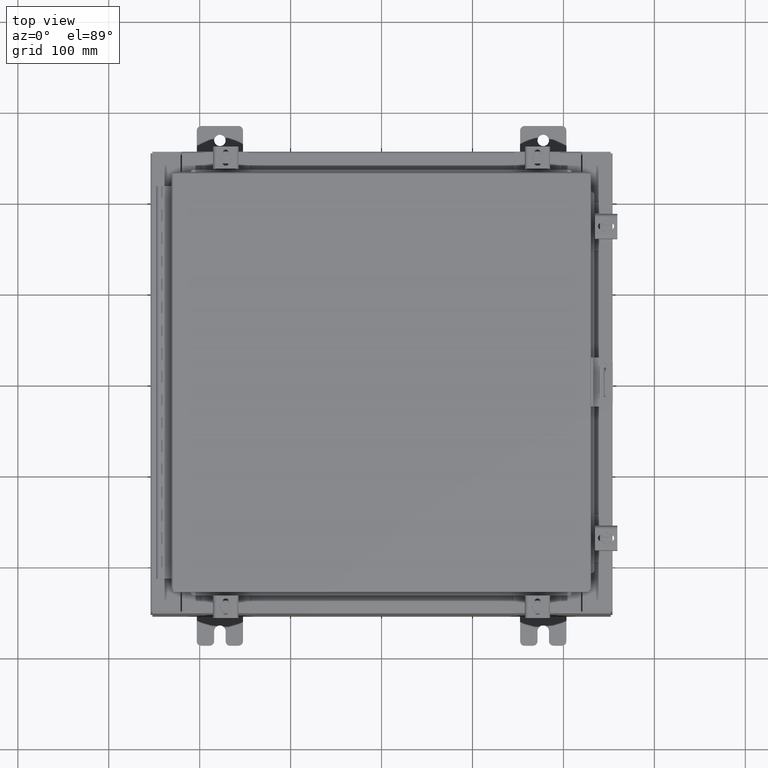
[diagram: clean part render]
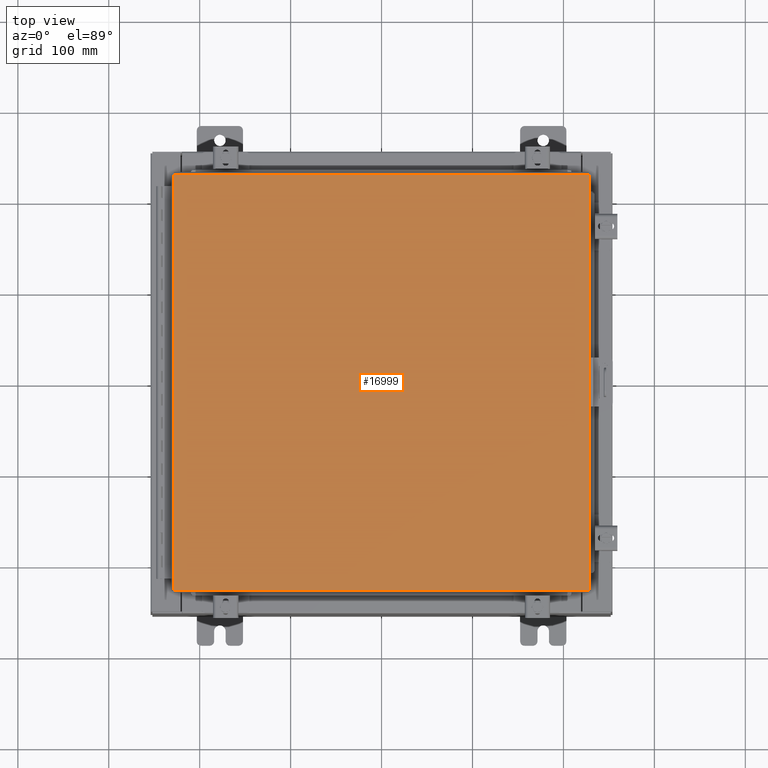
[diagram: same view with one face highlighted and labeled with its STEP entity id]
A machine part, top view. The second image highlights one B-rep face of the part: STEP entity #16999.
In plain terms, the highlighted planar face has unit normal (0, 0, -1).
Its self-contained STEP definition (entity closure, byte-faithful):
#2461 = PLANE ( 'NONE',  #9481 ) ;
#2734 = DIRECTION ( 'NONE',  ( 0.0000000000000000000, 1.000000000000000000, 0.0000000000000000000 ) ) ;
#3013 = VECTOR ( 'NONE', #19123, 39.37007874015748100 ) ;
#3707 = LINE ( 'NONE', #16832, #3013 ) ;
#3790 = EDGE_LOOP ( 'NONE', ( #27262, #22194, #19874, #21165 ) ) ;
#5602 = EDGE_CURVE ( 'NONE', #6151, #25662, #22834, .T. ) ;
#5678 = CARTESIAN_POINT ( 'NONE',  ( -8.990299999999997700, 9.006299999999999500, -2.048885995248197400E-016 ) ) ;
#6151 = VERTEX_POINT ( 'NONE', #6971 ) ;
#6971 = CARTESIAN_POINT ( 'NONE',  ( 8.990299999999999500, -9.006299999999999500, -7.512581982576723400E-016 ) ) ;
#7653 = LINE ( 'NONE', #21038, #19038 ) ;
#7901 = CARTESIAN_POINT ( 'NONE',  ( -8.990299999999997700, 9.006299999999999500, -2.048885995248197400E-016 ) ) ;
#8201 = DIRECTION ( 'NONE',  ( 0.0000000000000000000, 0.0000000000000000000, -1.000000000000000000 ) ) ;
#9481 = AXIS2_PLACEMENT_3D ( 'NONE', #21836, #8201, #24124 ) ;
#10043 = FACE_OUTER_BOUND ( 'NONE', #3790, .T. ) ;
#10145 = VERTEX_POINT ( 'NONE', #5678 ) ;
#11977 = DIRECTION ( 'NONE',  ( -1.000000000000000000, -0.0000000000000000000, -0.0000000000000000000 ) ) ;
#13233 = EDGE_CURVE ( 'NONE', #25662, #10145, #7653, .T. ) ;
#13277 = VERTEX_POINT ( 'NONE', #23484 ) ;
#14501 = CARTESIAN_POINT ( 'NONE',  ( 8.990300000000001300, 9.006299999999999500, -2.048885995248197400E-016 ) ) ;
#16823 = VECTOR ( 'NONE', #2734, 39.37007874015748100 ) ;
#16832 = CARTESIAN_POINT ( 'NONE',  ( -8.990299999999999500, -9.006299999999999500, -2.048885995248197400E-016 ) ) ;
#16999 = ADVANCED_FACE ( 'NONE', ( #10043 ), #2461, .F. ) ;
#17076 = DIRECTION ( 'NONE',  ( 0.0000000000000000000, -1.000000000000000000, 0.0000000000000000000 ) ) ;
#18653 = CARTESIAN_POINT ( 'NONE',  ( 8.990299999999999500, -9.006299999999999500, -7.512581982576723400E-016 ) ) ;
#19038 = VECTOR ( 'NONE', #11977, 39.37007874015748100 ) ;
#19123 = DIRECTION ( 'NONE',  ( 1.000000000000000000, -0.0000000000000000000, -0.0000000000000000000 ) ) ;
#19421 = VECTOR ( 'NONE', #17076, 39.37007874015748100 ) ;
#19874 = ORIENTED_EDGE ( 'NONE', *, *, #13233, .T. ) ;
#20239 = EDGE_CURVE ( 'NONE', #13277, #6151, #3707, .T. ) ;
#21038 = CARTESIAN_POINT ( 'NONE',  ( 8.990300000000001300, 9.006299999999999500, -2.048885995248197400E-016 ) ) ;
#21165 = ORIENTED_EDGE ( 'NONE', *, *, #22043, .T. ) ;
#21836 = CARTESIAN_POINT ( 'NONE',  ( 0.0000000000000000000, 0.0000000000000000000, 0.0000000000000000000 ) ) ;
#22043 = EDGE_CURVE ( 'NONE', #10145, #13277, #25449, .T. ) ;
#22194 = ORIENTED_EDGE ( 'NONE', *, *, #5602, .T. ) ;
#22834 = LINE ( 'NONE', #18653, #16823 ) ;
#23484 = CARTESIAN_POINT ( 'NONE',  ( -8.990299999999999500, -9.006299999999999500, -2.048885995248197400E-016 ) ) ;
#24124 = DIRECTION ( 'NONE',  ( -1.000000000000000000, 0.0000000000000000000, -0.0000000000000000000 ) ) ;
#25449 = LINE ( 'NONE', #7901, #19421 ) ;
#25662 = VERTEX_POINT ( 'NONE', #14501 ) ;
#27262 = ORIENTED_EDGE ( 'NONE', *, *, #20239, .T. ) ;